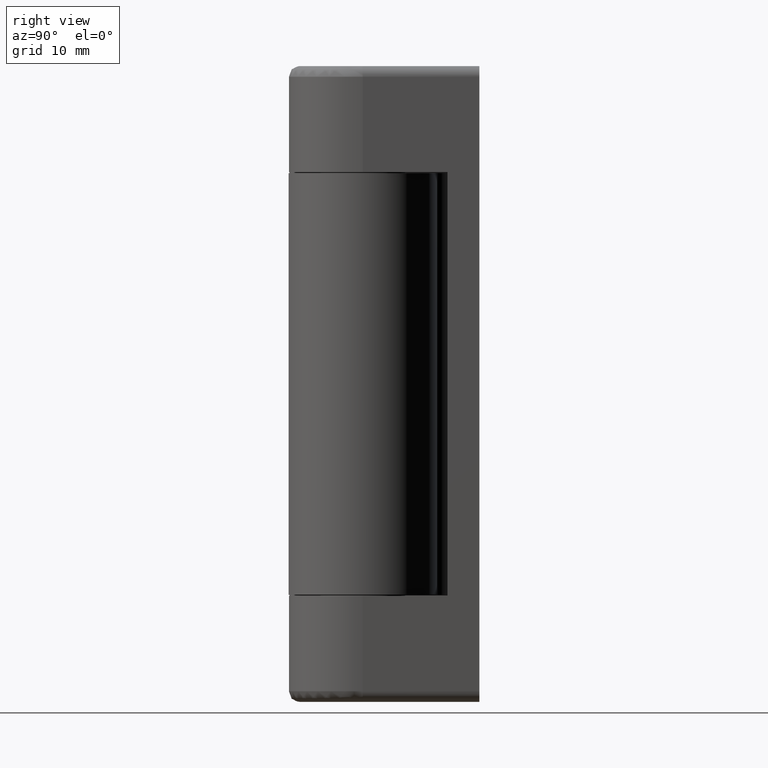
[diagram: clean part render]
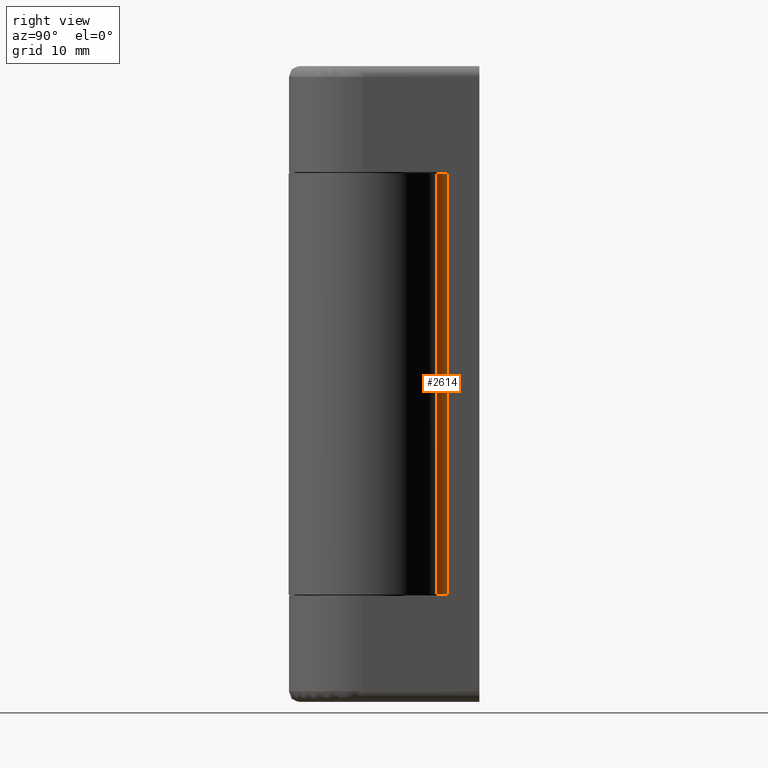
[diagram: same view with one face highlighted and labeled with its STEP entity id]
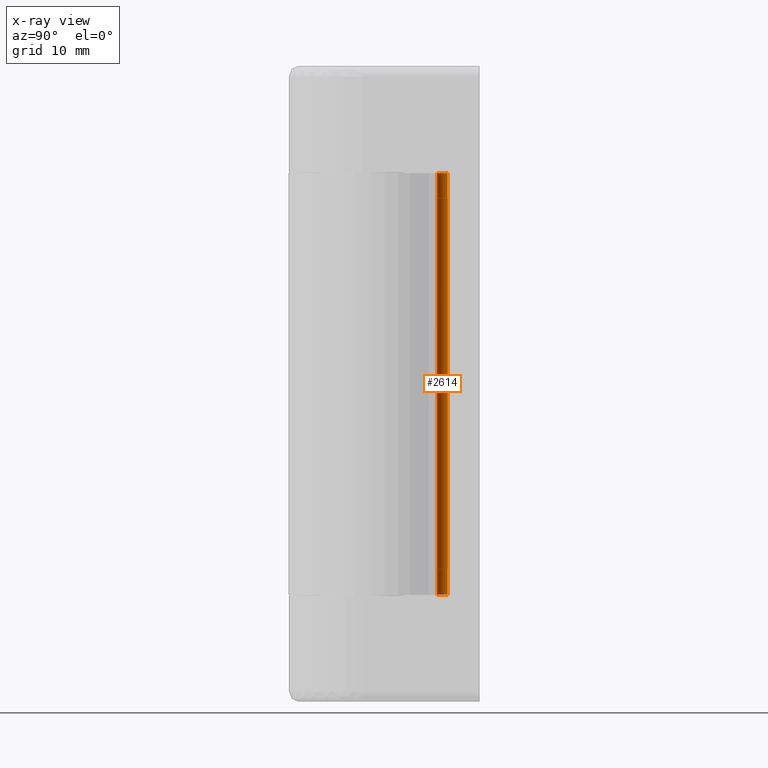
[diagram: x-ray of the same camera — body ghosted, the highlighted face saturated]
A machine part, right view. The second image highlights one B-rep face of the part: STEP entity #2614.
The next image is the same camera in x-ray: the body ghosted, the highlighted face saturated — about 0% of this face is hidden behind the body in this view.
In plain terms, the highlighted face is a freeform B-spline surface patch.
Its self-contained STEP definition (entity closure, byte-faithful):
#2342=CARTESIAN_POINT('',(-7.0,7.0,10.100000000000000));
#2343=VERTEX_POINT('',#2342);
#2407=CARTESIAN_POINT('',(-8.0,8.0,10.100000000000000));
#2408=VERTEX_POINT('',#2407);
#2414=CARTESIAN_POINT('',(-7.0,7.0,10.100000000000000));
#2415=CARTESIAN_POINT('',(-8.0,6.999999999999999,10.100000000000000));
#2416=CARTESIAN_POINT('',(-8.0,8.0,10.100000000000000));
#2424=(BOUNDED_CURVE()B_SPLINE_CURVE(2,(#2414,#2415,#2416),.UNSPECIFIED.,.F.,.U.)CURVE()GEOMETRIC_REPRESENTATION_ITEM()QUASI_UNIFORM_CURVE()RATIONAL_B_SPLINE_CURVE((1.0,0.707106781186548,1.0))REPRESENTATION_ITEM(''));
#2425=EDGE_CURVE('',#2343,#2408,#2424,.T.);
#2443=CARTESIAN_POINT('',(-7.0,7.0,49.899999999999999));
#2444=VERTEX_POINT('',#2443);
#2450=CARTESIAN_POINT('',(-8.0,8.0,49.899999999999999));
#2451=VERTEX_POINT('',#2450);
#2452=CARTESIAN_POINT('',(-7.0,7.0,49.899999999999999));
#2453=CARTESIAN_POINT('',(-8.0,6.999999999999999,49.899999999999991));
#2454=CARTESIAN_POINT('',(-8.0,8.0,49.899999999999999));
#2462=(BOUNDED_CURVE()B_SPLINE_CURVE(2,(#2452,#2453,#2454),.UNSPECIFIED.,.F.,.U.)CURVE()GEOMETRIC_REPRESENTATION_ITEM()QUASI_UNIFORM_CURVE()RATIONAL_B_SPLINE_CURVE((1.0,0.707106781186548,1.0))REPRESENTATION_ITEM(''));
#2463=EDGE_CURVE('',#2444,#2451,#2462,.T.);
#2586=CARTESIAN_POINT('',(-7.999961923064171,8.008726535498374,50.895000000000010));
#2587=CARTESIAN_POINT('',(-7.999961923064171,8.008726535498374,9.080125000000002));
#2588=CARTESIAN_POINT('',(-8.009319986679547,6.936398657988249,50.895000000000017));
#2589=CARTESIAN_POINT('',(-8.009319986679547,6.936398657988249,9.080125000000002));
#2590=CARTESIAN_POINT('',(-6.938951460465145,7.001865201578133,50.895000000000010));
#2591=CARTESIAN_POINT('',(-6.938951460465145,7.001865201578133,9.080125000000002));
#2599=(BOUNDED_SURFACE()B_SPLINE_SURFACE(1,2,((#2586,#2588,#2590),(#2587,#2589,#2591)),.UNSPECIFIED.,.F.,.F.,.U.)B_SPLINE_SURFACE_WITH_KNOTS((2,2),(3,3),(0.0,41.814875000000008),(0.0,1.0),.UNSPECIFIED.)GEOMETRIC_REPRESENTATION_ITEM()RATIONAL_B_SPLINE_SURFACE(((1.0,0.681998360062499,1.0),(1.0,0.681998360062499,1.0)))REPRESENTATION_ITEM('')SURFACE());
#2600=ORIENTED_EDGE('',*,*,#2425,.T.);
#2601=CARTESIAN_POINT('',(-8.0,8.0,49.899999999999999));
#2602=CARTESIAN_POINT('',(-8.0,8.0,10.100000000000000));
#2603=QUASI_UNIFORM_CURVE('',1,(#2601,#2602),.UNSPECIFIED.,.F.,.U.);
#2604=EDGE_CURVE('',#2451,#2408,#2603,.T.);
#2605=ORIENTED_EDGE('',*,*,#2604,.F.);
#2606=ORIENTED_EDGE('',*,*,#2463,.F.);
#2607=CARTESIAN_POINT('',(-7.0,7.0,49.899999999999999));
#2608=CARTESIAN_POINT('',(-7.0,7.0,10.100000000000000));
#2609=QUASI_UNIFORM_CURVE('',1,(#2607,#2608),.UNSPECIFIED.,.F.,.U.);
#2610=EDGE_CURVE('',#2444,#2343,#2609,.T.);
#2611=ORIENTED_EDGE('',*,*,#2610,.T.);
#2612=EDGE_LOOP('',(#2600,#2605,#2606,#2611));
#2613=FACE_OUTER_BOUND('',#2612,.T.);
#2614=ADVANCED_FACE('',(#2613),#2599,.F.);